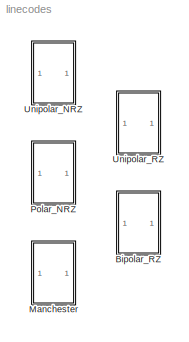
MODEL linecodes
KIND model
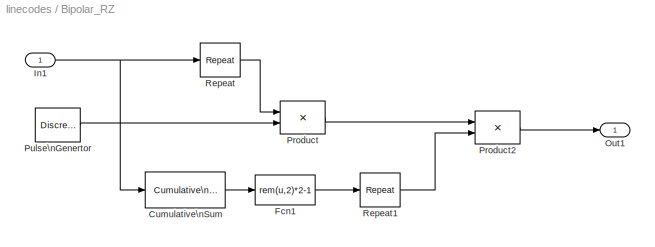
BLOCK [SubSystem] Bipolar_RZ
  FunctionWithSeparateData = off
  MaskCallbackString = |
  MaskEnableString = on,on
  MaskHideContents = off
  MaskIconFrame = on
  MaskIconOpaque = on
  MaskIconRotate = none
  MaskIconUnits = autoscale
  MaskPortRotate = default
  MaskPromptString = Binary Data Rate|Sample per bit
  MaskStyleString = edit,edit
  MaskToolTipString = on,on
  MaskTunableValueString = on,on
  MaskType = Bipolar_rz
  MaskValueString = Rb|Spb
  MaskVariables = Rb=@1;Spb=@2;
  MaskVisibilityString = on,on
  MinAlgLoopOccurrences = off
  Opaque = off
  Ports = [1, 1]
  PropExecContextOutsideSubsystem = off
  RTWSystemCode = Auto
  RequestExecContextInheritance = off
  SID = 2
  ShowPortLabels = none
BLOCK [Reference] Bipolar_RZ/Cumulative\nSum  REF=dspmathops/Cumulative\nSum
  LockScale = off
  Ports = [1, 1]
  SID = 4
  SourceBlock = dspmathops/Cumulative\nSum
  SourceType = Cumulative Sum
  accumFracLength = 30
  accumMode = Same as input
  accumWordLength = 32
  dim = Channels (running sum)
  outputFracLength = 15
  outputMode = Same as accumulator
  outputWordLength = 16
  overflowMode = off
  reset_popup = None
  roundingMode = Floor
BLOCK [Fcn] Bipolar_RZ/Fcn1
  Expr = rem(u,2)*2-1
  SID = 5
BLOCK [Inport] Bipolar_RZ/In1
  IconDisplay = Port number
  SID = 3
BLOCK [Outport] Bipolar_RZ/Out1
  IconDisplay = Port number
  SID = 11
BLOCK [Product] Bipolar_RZ/Product
  InputSameDT = off
  Ports = [2, 1]
  RndMeth = Floor
  SID = 6
BLOCK [Product] Bipolar_RZ/Product2
  InputSameDT = off
  Ports = [2, 1]
  RndMeth = Floor
  SID = 7
BLOCK [DiscretePulseGenerator] Bipolar_RZ/Pulse\nGenertor
  Period = Spb
  Ports = [0, 1]
  PulseWidth = Spb/2
  SID = 8
  SampleTime = 1/Rb/Spb
  VectorParams1D = off
BLOCK [Reference] Bipolar_RZ/Repeat  REF=dspsigops/Repeat
  N = Spb
  Ports = [1, 1]
  SID = 9
  SourceBlock = dspsigops/Repeat
  SourceType = Repeat
  ic = 0
  mode = Maintain input frame size
BLOCK [Reference] Bipolar_RZ/Repeat1  REF=dspsigops/Repeat
  N = Spb
  Ports = [1, 1]
  SID = 10
  SourceBlock = dspsigops/Repeat
  SourceType = Repeat
  ic = 0
  mode = Maintain input frame size
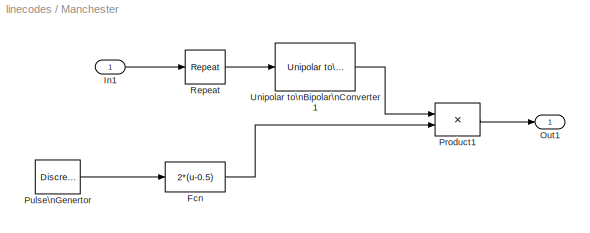
BLOCK [SubSystem] Manchester
  FunctionWithSeparateData = off
  MaskCallbackString = |
  MaskEnableString = on,on
  MaskHideContents = off
  MaskIconFrame = on
  MaskIconOpaque = on
  MaskIconRotate = none
  MaskIconUnits = autoscale
  MaskPortRotate = default
  MaskPromptString = Binary Data Rate|Samples per bit
  MaskStyleString = edit,edit
  MaskToolTipString = on,on
  MaskTunableValueString = on,on
  MaskType = Manchester
  MaskValueString = Rb|Spb
  MaskVariables = Rb=@1;Spb=@2;
  MaskVisibilityString = on,on
  MinAlgLoopOccurrences = off
  Opaque = off
  Ports = [1, 1]
  PropExecContextOutsideSubsystem = off
  RTWSystemCode = Auto
  RequestExecContextInheritance = off
  SID = 13
  ShowPortLabels = none
BLOCK [Fcn] Manchester/Fcn
  Expr = 2*(u-0.5)
  SID = 15
BLOCK [Inport] Manchester/In1
  IconDisplay = Port number
  SID = 14
BLOCK [Outport] Manchester/Out1
  IconDisplay = Port number
  SID = 20
BLOCK [Product] Manchester/Product1
  InputSameDT = off
  Ports = [2, 1]
  RndMeth = Floor
  SID = 16
BLOCK [DiscretePulseGenerator] Manchester/Pulse\nGenertor
  Period = Spb
  Ports = [0, 1]
  PulseWidth = Spb/2
  SID = 17
  SampleTime = 1/Rb/Spb
BLOCK [Reference] Manchester/Repeat  REF=dspsigops/Repeat
  N = Spb
  Ports = [1, 1]
  SID = 18
  SourceBlock = dspsigops/Repeat
  SourceType = Repeat
  ic = 0
  mode = Maintain input frame size
BLOCK [Reference] Manchester/Unipolar to\nBipolar\nConverter1  REF=commutil2/Unipolar to\nBipolar\nConverter
  FunctionWithSeparateData = off
  M = 2
  Ports = [1, 1]
  RTWMemSecDataConstants = Inherit from model
  RTWMemSecDataInternal = Inherit from model
  RTWMemSecDataParameters = Inherit from model
  RTWMemSecFuncExecute = Inherit from model
  RTWMemSecFuncInitTerm = Inherit from model
  SID = 19
  ShowPortLabels = FromPortIcon
  SourceBlock = commutil2/Unipolar to\nBipolar\nConverter
  SourceType = Unipolar to Bipolar Converter
  SystemSampleTime = -1
  dataType = Same as input
  polarity = Positive
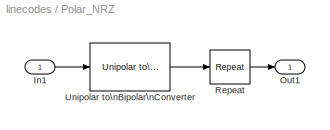
BLOCK [SubSystem] Polar_NRZ
  FunctionWithSeparateData = off
  MaskCallbackString = |
  MaskEnableString = on,on
  MaskHideContents = off
  MaskIconFrame = on
  MaskIconOpaque = on
  MaskIconRotate = none
  MaskIconUnits = autoscale
  MaskPortRotate = default
  MaskPromptString = Binary Data Rate|Samples per bit
  MaskStyleString = edit,edit
  MaskToolTipString = on,on
  MaskTunableValueString = on,on
  MaskType = Polar_nrz
  MaskValueString = Rb|Spb
  MaskVariables = Rb=@1;Spb=@2;
  MaskVisibilityString = on,on
  MinAlgLoopOccurrences = off
  Opaque = off
  Ports = [1, 1]
  PropExecContextOutsideSubsystem = off
  RTWSystemCode = Auto
  RequestExecContextInheritance = off
  SID = 21
  ShowPortLabels = none
BLOCK [Inport] Polar_NRZ/In1
  IconDisplay = Port number
  SID = 22
BLOCK [Outport] Polar_NRZ/Out1
  IconDisplay = Port number
  SID = 25
BLOCK [Reference] Polar_NRZ/Repeat  REF=dspsigops/Repeat
  N = Spb
  Ports = [1, 1]
  SID = 23
  SourceBlock = dspsigops/Repeat
  SourceType = Repeat
  ic = 0
  mode = Maintain input frame size
BLOCK [Reference] Polar_NRZ/Unipolar to\nBipolar\nConverter  REF=commutil2/Unipolar to\nBipolar\nConverter
  FunctionWithSeparateData = off
  M = 2
  Ports = [1, 1]
  RTWMemSecDataConstants = Inherit from model
  RTWMemSecDataInternal = Inherit from model
  RTWMemSecDataParameters = Inherit from model
  RTWMemSecFuncExecute = Inherit from model
  RTWMemSecFuncInitTerm = Inherit from model
  SID = 24
  ShowPortLabels = FromPortIcon
  SourceBlock = commutil2/Unipolar to\nBipolar\nConverter
  SourceType = Unipolar to Bipolar Converter
  SystemSampleTime = -1
  dataType = Same as input
  polarity = Positive
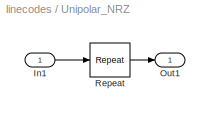
BLOCK [SubSystem] Unipolar_NRZ
  FunctionWithSeparateData = off
  MaskCallbackString = |
  MaskEnableString = on,on
  MaskHideContents = off
  MaskIconFrame = on
  MaskIconOpaque = on
  MaskIconRotate = none
  MaskIconUnits = autoscale
  MaskPortRotate = default
  MaskPromptString = Binary Data Rate|Samples per bit
  MaskStyleString = edit,edit
  MaskToolTipString = on,on
  MaskTunableValueString = on,on
  MaskType = unipolar_nrz
  MaskValueString = Rb|Spb
  MaskVariables = Rb=@1;Spb=@2;
  MaskVisibilityString = on,on
  MinAlgLoopOccurrences = off
  Opaque = off
  Ports = [1, 1]
  PropExecContextOutsideSubsystem = off
  RTWSystemCode = Auto
  RequestExecContextInheritance = off
  SID = 47
  ShowPortLabels = none
BLOCK [Inport] Unipolar_NRZ/In1
  IconDisplay = Port number
  SID = 48
BLOCK [Outport] Unipolar_NRZ/Out1
  IconDisplay = Port number
  SID = 50
BLOCK [Reference] Unipolar_NRZ/Repeat  REF=dspsigops/Repeat
  N = Spb
  Ports = [1, 1]
  SID = 49
  SourceBlock = dspsigops/Repeat
  SourceType = Repeat
  ic = 0
  mode = Maintain input frame size
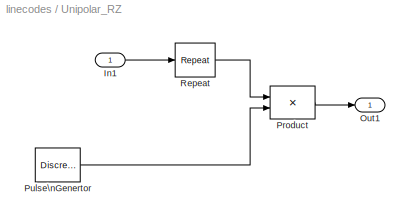
BLOCK [SubSystem] Unipolar_RZ
  FunctionWithSeparateData = off
  MaskCallbackString = |
  MaskEnableString = on,on
  MaskHideContents = off
  MaskIconFrame = on
  MaskIconOpaque = on
  MaskIconRotate = none
  MaskIconUnits = autoscale
  MaskPortRotate = default
  MaskPromptString = Binary Data Rate|Samples per bit
  MaskStyleString = edit,edit
  MaskToolTipString = on,on
  MaskTunableValueString = on,on
  MaskType = Unipolar_rz
  MaskValueString = Rb|Spb
  MaskVariables = Rb=@1;Spb=@2;
  MaskVisibilityString = on,on
  MinAlgLoopOccurrences = off
  Opaque = off
  Ports = [1, 1]
  PropExecContextOutsideSubsystem = off
  RTWSystemCode = Auto
  RequestExecContextInheritance = off
  SID = 51
  ShowPortLabels = none
BLOCK [Inport] Unipolar_RZ/In1
  IconDisplay = Port number
  SID = 52
BLOCK [Outport] Unipolar_RZ/Out1
  IconDisplay = Port number
  SID = 56
BLOCK [Product] Unipolar_RZ/Product
  InputSameDT = off
  Ports = [2, 1]
  RndMeth = Floor
  SID = 53
BLOCK [DiscretePulseGenerator] Unipolar_RZ/Pulse\nGenertor
  Period = Spb
  Ports = [0, 1]
  PulseWidth = Spb/2
  SID = 54
  SampleTime = 1/Rb/Spb
BLOCK [Reference] Unipolar_RZ/Repeat  REF=dspsigops/Repeat
  N = Spb
  Ports = [1, 1]
  SID = 55
  SourceBlock = dspsigops/Repeat
  SourceType = Repeat
  ic = 0
  mode = Maintain input frame size
LINE Bipolar_RZ/Cumulative\nSum:1 -> Bipolar_RZ/Fcn1:1
LINE Bipolar_RZ/Fcn1:1 -> Bipolar_RZ/Repeat1:1
NET Bipolar_RZ/In1:1 -> Bipolar_RZ/Cumulative\nSum:1, Bipolar_RZ/Repeat:1
LINE Bipolar_RZ/Product2:1 -> Bipolar_RZ/Out1:1
LINE Bipolar_RZ/Product:1 -> Bipolar_RZ/Product2:1
LINE Bipolar_RZ/Pulse\nGenertor:1 -> Bipolar_RZ/Product:2
LINE Bipolar_RZ/Repeat1:1 -> Bipolar_RZ/Product2:2
LINE Bipolar_RZ/Repeat:1 -> Bipolar_RZ/Product:1
LINE Manchester/Fcn:1 -> Manchester/Product1:2
LINE Manchester/In1:1 -> Manchester/Repeat:1
LINE Manchester/Product1:1 -> Manchester/Out1:1
LINE Manchester/Pulse\nGenertor:1 -> Manchester/Fcn:1
LINE Manchester/Repeat:1 -> Manchester/Unipolar to\nBipolar\nConverter1:1
LINE Manchester/Unipolar to\nBipolar\nConverter1:1 -> Manchester/Product1:1
LINE Polar_NRZ/In1:1 -> Polar_NRZ/Unipolar to\nBipolar\nConverter:1
LINE Polar_NRZ/Repeat:1 -> Polar_NRZ/Out1:1
LINE Polar_NRZ/Unipolar to\nBipolar\nConverter:1 -> Polar_NRZ/Repeat:1
LINE Unipolar_NRZ/In1:1 -> Unipolar_NRZ/Repeat:1
LINE Unipolar_NRZ/Repeat:1 -> Unipolar_NRZ/Out1:1
LINE Unipolar_RZ/In1:1 -> Unipolar_RZ/Repeat:1
LINE Unipolar_RZ/Product:1 -> Unipolar_RZ/Out1:1
LINE Unipolar_RZ/Pulse\nGenertor:1 -> Unipolar_RZ/Product:2
LINE Unipolar_RZ/Repeat:1 -> Unipolar_RZ/Product:1
note: NET lines group one-source signal fan-out (src -> all destinations, sorted); 1:1 wires keep LINE
